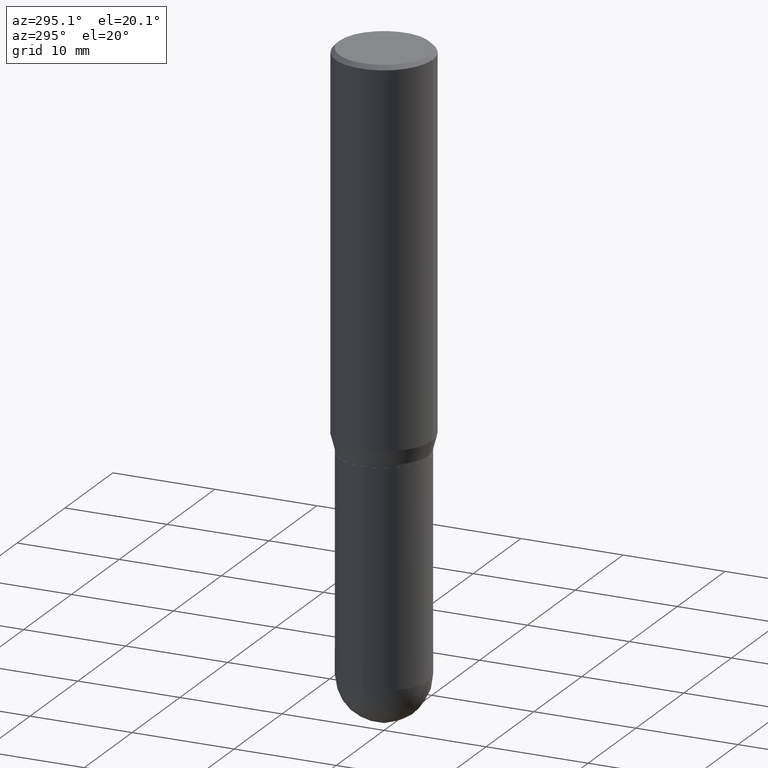
[diagram: clean part render]
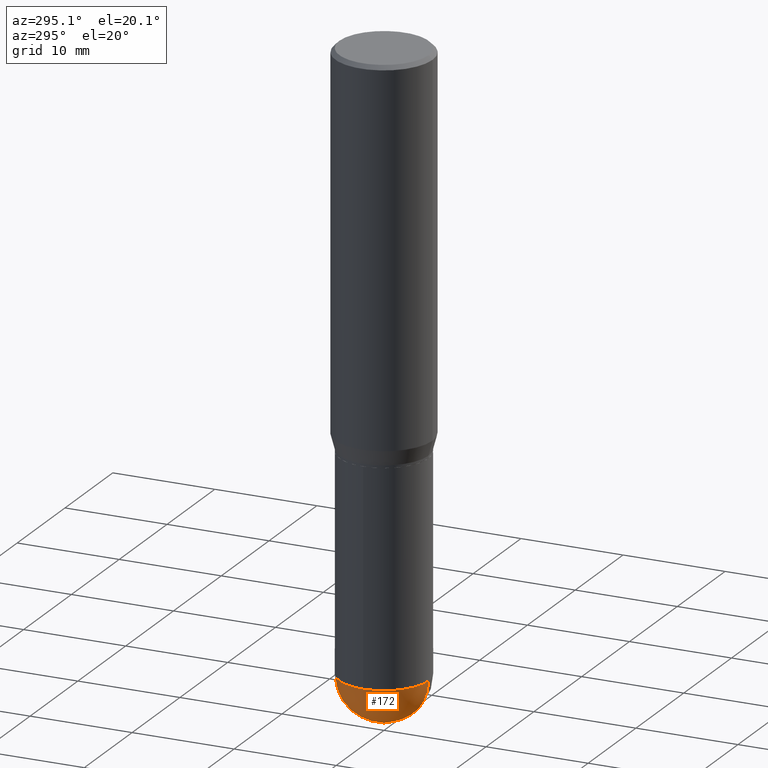
[diagram: same view with one face highlighted and labeled with its STEP entity id]
A machine part, auxiliary view. The second image highlights one B-rep face of the part: STEP entity #172.
In plain terms, the highlighted spherical surface has radius 4.3663 mm.
Its self-contained STEP definition (entity closure, byte-faithful):
#1 = ORIENTED_EDGE ( 'NONE', *, *, #424, .F. ) ;
#2 = DIRECTION ( 'NONE',  ( -7.105427357601001070E-15, -1.000000000000000000, 0.000000000000000000 ) ) ;
#13 = VERTEX_POINT ( 'NONE', #62 ) ;
#23 = DIRECTION ( 'NONE',  ( -2.445468806185136597E-29, 3.491481338843145583E-15, 1.000000000000000000 ) ) ;
#47 = CARTESIAN_POINT ( 'NONE',  ( 5.678595619168622984E-29, -8.149569383438070914E-15, -2.328100000000000058 ) ) ;
#62 = CARTESIAN_POINT ( 'NONE',  ( 1.200371284294326039E-15, 0.1718999999999918094, -2.328100000000000946 ) ) ;
#74 = CIRCLE ( 'NONE', #203, 0.1719000000000000250 ) ;
#78 = CARTESIAN_POINT ( 'NONE',  ( 5.678595619168622984E-29, -8.149569383438070914E-15, -2.328100000000000058 ) ) ;
#127 = ORIENTED_EDGE ( 'NONE', *, *, #326, .F. ) ;
#129 = SPHERICAL_SURFACE ( 'NONE', #154, 0.1718999999999999417 ) ;
#133 = AXIS2_PLACEMENT_3D ( 'NONE', #47, #201, #389 ) ;
#154 = AXIS2_PLACEMENT_3D ( 'NONE', #493, #371, #264 ) ;
#168 = CIRCLE ( 'NONE', #133, 0.1718999999999999417 ) ;
#172 = ADVANCED_FACE ( 'NONE', ( #378 ), #129, .T. ) ;
#201 = DIRECTION ( 'NONE',  ( 1.000000000000000000, -6.982962677686265922E-15, 4.883557194083112340E-29 ) ) ;
#203 = AXIS2_PLACEMENT_3D ( 'NONE', #307, #447, #376 ) ;
#220 = EDGE_CURVE ( 'NONE', #13, #483, #314, .T. ) ;
#243 = CIRCLE ( 'NONE', #381, 0.1718999999999999417 ) ;
#253 = EDGE_LOOP ( 'NONE', ( #127, #323, #1, #405 ) ) ;
#264 = DIRECTION ( 'NONE',  ( 6.982962677686265922E-15, 1.000000000000000000, -3.178415350394722463E-15 ) ) ;
#275 = CARTESIAN_POINT ( 'NONE',  ( -1.221422962771555008E-15, -0.1719000000000081296, -2.328099999999999614 ) ) ;
#278 = DIRECTION ( 'NONE',  ( -1.000000000000000000, 7.105427357601001070E-15, -4.926315508542082329E-29 ) ) ;
#285 = DIRECTION ( 'NONE',  ( 1.000000000000000000, -6.982962677686271444E-15, 0.000000000000000000 ) ) ;
#297 = CARTESIAN_POINT ( 'NONE',  ( 6.106321861207344902E-29, -8.739229186346536619E-15, -2.500000000000000000 ) ) ;
#307 = CARTESIAN_POINT ( 'NONE',  ( 5.693295927679617284E-29, -8.128517704960729139E-15, -2.328100000000000058 ) ) ;
#314 = CIRCLE ( 'NONE', #321, 0.1719000000000000250 ) ;
#315 = EDGE_CURVE ( 'NONE', #395, #336, #243, .T. ) ;
#321 = AXIS2_PLACEMENT_3D ( 'NONE', #408, #23, #285 ) ;
#323 = ORIENTED_EDGE ( 'NONE', *, *, #315, .T. ) ;
#326 = EDGE_CURVE ( 'NONE', #395, #13, #168, .T. ) ;
#334 = CARTESIAN_POINT ( 'NONE',  ( -0.1719000000000000250, -5.461446893841112247E-15, -2.328100000000000058 ) ) ;
#336 = VERTEX_POINT ( 'NONE', #275 ) ;
#371 = DIRECTION ( 'NONE',  ( -1.000000000000000000, 6.982962677686265922E-15, -4.883557194083112340E-29 ) ) ;
#376 = DIRECTION ( 'NONE',  ( 1.000000000000000000, -6.982962677686271444E-15, 0.000000000000000000 ) ) ;
#378 = FACE_OUTER_BOUND ( 'NONE', #253, .T. ) ;
#381 = AXIS2_PLACEMENT_3D ( 'NONE', #78, #278, #2 ) ;
#389 = DIRECTION ( 'NONE',  ( 6.982962677686266711E-15, 1.000000000000000000, 0.000000000000000000 ) ) ;
#395 = VERTEX_POINT ( 'NONE', #297 ) ;
#405 = ORIENTED_EDGE ( 'NONE', *, *, #220, .F. ) ;
#408 = CARTESIAN_POINT ( 'NONE',  ( 5.693295927679617284E-29, -8.128517704960729139E-15, -2.328100000000000058 ) ) ;
#424 = EDGE_CURVE ( 'NONE', #483, #336, #74, .T. ) ;
#447 = DIRECTION ( 'NONE',  ( -2.445468806185136597E-29, 3.491481338843145583E-15, 1.000000000000000000 ) ) ;
#483 = VERTEX_POINT ( 'NONE', #334 ) ;
#493 = CARTESIAN_POINT ( 'NONE',  ( 5.678595619168622984E-29, -8.149569383438070914E-15, -2.328100000000000058 ) ) ;